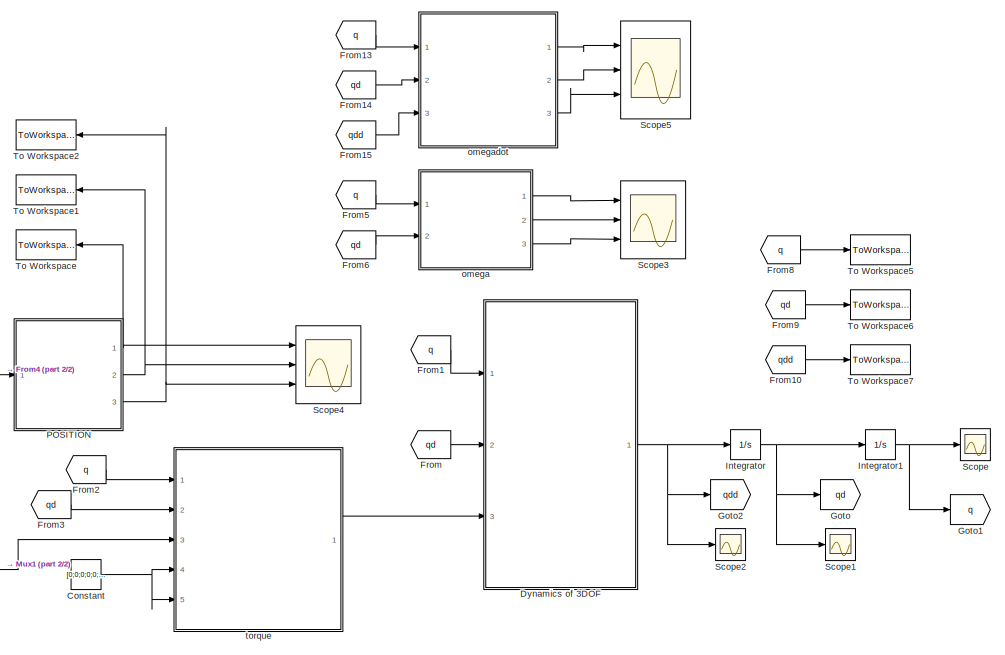
[diagram: root canvas - part 1/2, right side, full height]
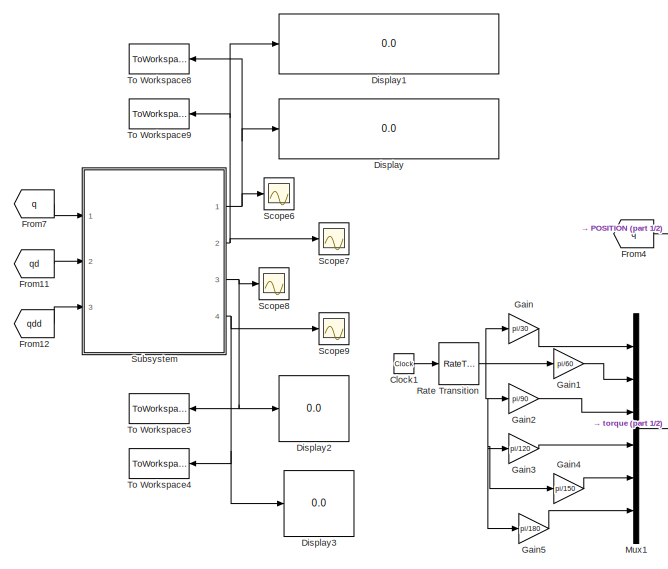
[diagram: root canvas - part 2/2, left side, full height]
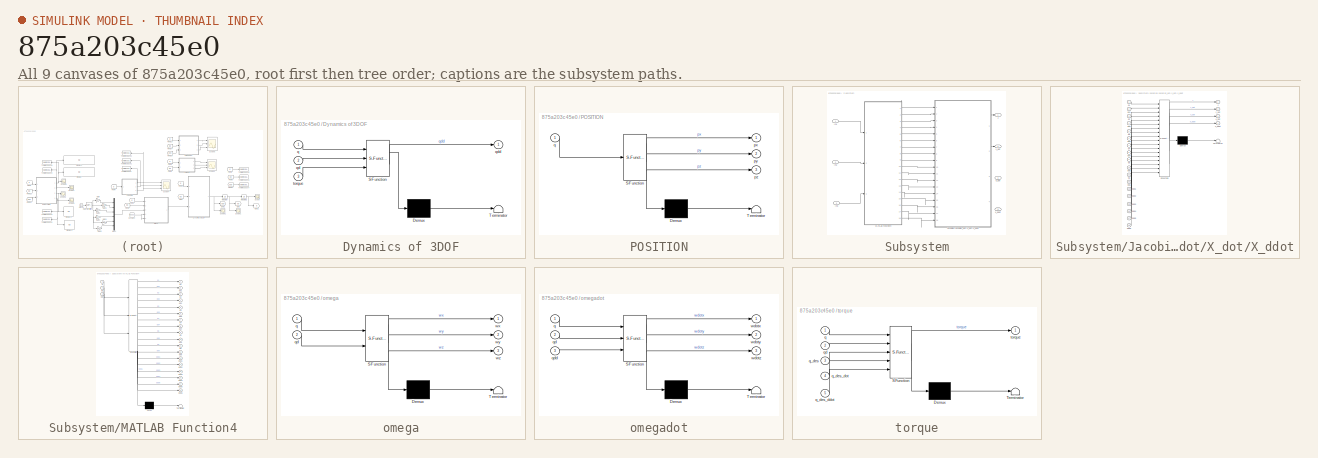
[diagram: thumbnail index - all 9 canvases of the model, root first then tree order]
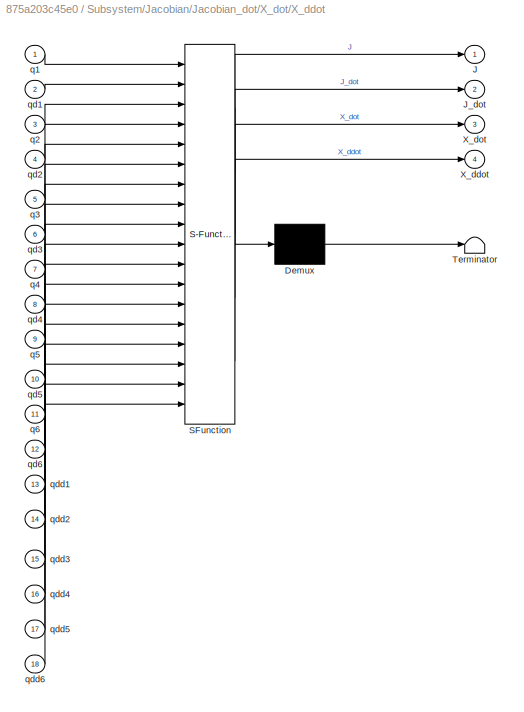
MODEL slx_875a203c45e0
KIND model
CONFIG AbsTol = auto
CONFIG EnableMultiTasking = off
CONFIG FixedStep = auto
CONFIG MaxStep = auto
CONFIG MinStep = auto
CONFIG RelTol = 1e-3
CONFIG SampleTimeConstraint = Unconstrained
CONFIG Solver = VariableStepAuto
CONFIG SolverName = VariableStepAuto
CONFIG StartTime = 0.0
CONFIG StopTime = 200
BLOCK [Clock] Clock1
BLOCK [Constant] Constant
  Value = [0;0;0;0;0;0]
BLOCK [Display] Display
  Decimation = 1
  Ports = [1]
BLOCK [Display] Display1
  Decimation = 1
  Ports = [1]
BLOCK [Display] Display2
  Decimation = 1
  Ports = [1]
BLOCK [Display] Display3
  Decimation = 1
  Ports = [1]
BLOCK [SubSystem] Dynamics of 3DOF
  ErrorFcn = Stateflow.Translate.translate
  PermitHierarchicalResolution = ExplicitOnly
  Ports = [3, 1]
  RequestExecContextInheritance = off
  SFBlockType = MATLAB Function
  TreatAsAtomicUnit = on
  Variant = off
BLOCK [Demux] Dynamics of 3DOF/ Demux 
  Outputs = 1
  Ports = [1, 1]
BLOCK [S-Function] Dynamics of 3DOF/ SFunction 
  EnableBusSupport = on
  FunctionName = sf_sfun
  PortCounts = [3 2]
  Ports = [3, 2]
  SFcnIsStateOwnerBlock = off
  SFunctionDeploymentMode = off
  Tag = Stateflow S-Function DynamicsAaa 2
BLOCK [Terminator] Dynamics of 3DOF/ Terminator 
BLOCK [Inport] Dynamics of 3DOF/q
  IconDisplay = Port number
BLOCK [Inport] Dynamics of 3DOF/qd
  IconDisplay = Port number
  Port = 2
BLOCK [Outport] Dynamics of 3DOF/qdd
  IconDisplay = Port number
BLOCK [Inport] Dynamics of 3DOF/torque
  IconDisplay = Port number
  Port = 3
BLOCK [From] From
  GotoTag = qd
BLOCK [From] From1
  GotoTag = q
BLOCK [From] From10
  GotoTag = qdd
BLOCK [From] From11
  GotoTag = qd
BLOCK [From] From12
  GotoTag = qdd
BLOCK [From] From13
  GotoTag = q
BLOCK [From] From14
  GotoTag = qd
BLOCK [From] From15
  GotoTag = qdd
BLOCK [From] From2
  GotoTag = q
BLOCK [From] From3
  GotoTag = qd
BLOCK [From] From4
  GotoTag = q
BLOCK [From] From5
  GotoTag = q
BLOCK [From] From6
  GotoTag = qd
BLOCK [From] From7
  GotoTag = q
BLOCK [From] From8
  GotoTag = q
BLOCK [From] From9
  GotoTag = qd
BLOCK [Gain] Gain
  Gain = pi/30
  OutDataTypeStr = Inherit: Inherit via internal rule
  ParamDataTypeStr = Inherit: Inherit via internal rule
  SaturateOnIntegerOverflow = off
BLOCK [Gain] Gain1
  Gain = pi/60
  OutDataTypeStr = Inherit: Inherit via internal rule
  ParamDataTypeStr = Inherit: Inherit via internal rule
  SaturateOnIntegerOverflow = off
BLOCK [Gain] Gain2
  Gain = pi/90
  OutDataTypeStr = Inherit: Inherit via internal rule
  ParamDataTypeStr = Inherit: Inherit via internal rule
  SaturateOnIntegerOverflow = off
BLOCK [Gain] Gain3
  Gain = pi/120
  OutDataTypeStr = Inherit: Inherit via internal rule
  ParamDataTypeStr = Inherit: Inherit via internal rule
  SaturateOnIntegerOverflow = off
BLOCK [Gain] Gain4
  Gain = pi/150
  OutDataTypeStr = Inherit: Inherit via internal rule
  ParamDataTypeStr = Inherit: Inherit via internal rule
  SaturateOnIntegerOverflow = off
BLOCK [Gain] Gain5
  Gain = pi/180
  OutDataTypeStr = Inherit: Inherit via internal rule
  ParamDataTypeStr = Inherit: Inherit via internal rule
  SaturateOnIntegerOverflow = off
BLOCK [Goto] Goto
  GotoTag = qd
BLOCK [Goto] Goto1
  GotoTag = q
BLOCK [Goto] Goto2
  GotoTag = qdd
BLOCK [Integrator] Integrator
  InitialCondition = [0;0;0;0;0;0]
  Ports = [1, 1]
BLOCK [Integrator] Integrator1
  InitialCondition = [1;1;1;1;1;1]
  Ports = [1, 1]
BLOCK [Mux] Mux1
  DisplayOption = bar
  Inputs = 6
  Ports = [6, 1]
BLOCK [SubSystem] POSITION
  ErrorFcn = Stateflow.Translate.translate
  PermitHierarchicalResolution = ExplicitOnly
  Ports = [1, 3]
  RequestExecContextInheritance = off
  SFBlockType = MATLAB Function
  TreatAsAtomicUnit = on
  Variant = off
BLOCK [Demux] POSITION/ Demux 
  Outputs = 1
  Ports = [1, 1]
BLOCK [S-Function] POSITION/ SFunction 
  EnableBusSupport = on
  FunctionName = sf_sfun
  PortCounts = [1 4]
  Ports = [1, 4]
  SFcnIsStateOwnerBlock = off
  SFunctionDeploymentMode = off
  Tag = Stateflow S-Function DynamicsAaa 4
BLOCK [Terminator] POSITION/ Terminator 
BLOCK [Outport] POSITION/px
  IconDisplay = Port number
BLOCK [Outport] POSITION/py
  IconDisplay = Port number
  Port = 2
BLOCK [Outport] POSITION/pz
  IconDisplay = Port number
  Port = 3
BLOCK [Inport] POSITION/q
  IconDisplay = Port number
BLOCK [RateTransition] Rate Transition
  OutPortSampleTime = 10
BLOCK [Scope] Scope
  NumInputPorts = 1
  Ports = [1]
  ScopeSpecificationString = Simulink.scopes.TimeScopeBlockCfg('CurrentConfiguration', extmgr.ConfigurationSet(extmgr.Configuration('Core','General UI',true,'FigureColor',[0.862745098039216 0.862745098039216 0.862745098039216]),extmgr.Configuration('Core','Source UI',true),extmgr.Configuration('Sources','WiredSimulink',true,'DataLoggingSaveFormat','Array','DataLoggingDecimation','1','DataLoggingDecimateData',true,'DataLogging...<+2173ch>
BLOCK [Scope] Scope1
  NumInputPorts = 1
  Ports = [1]
  ScopeSpecificationString = Simulink.scopes.TimeScopeBlockCfg('CurrentConfiguration', extmgr.ConfigurationSet(extmgr.Configuration('Core','General UI',true,'FigureColor',[0.862745098039216 0.862745098039216 0.862745098039216]),extmgr.Configuration('Core','Source UI',true),extmgr.Configuration('Sources','WiredSimulink',true,'DataLoggingVariableName','ScopeData2','DataLoggingSaveFormat','Array','DataLoggingDecimation','1','Dat...<+2142ch>
BLOCK [Scope] Scope2
  NumInputPorts = 1
  Ports = [1]
  ScopeSpecificationString = Simulink.scopes.TimeScopeBlockCfg('CurrentConfiguration', extmgr.ConfigurationSet(extmgr.Configuration('Core','General UI',true,'FigureColor',[0.862745098039216 0.862745098039216 0.862745098039216]),extmgr.Configuration('Core','Source UI',true),extmgr.Configuration('Sources','WiredSimulink',true,'DataLoggingSaveFormat','Array','DataLoggingDecimation','1','DataLoggingDecimateData',true),extmgr.Conf...<+2109ch>
BLOCK [Scope] Scope3
  NumInputPorts = 3
  Ports = [3]
  ScopeSpecificationString = Simulink.scopes.TimeScopeBlockCfg('CurrentConfiguration', extmgr.ConfigurationSet(extmgr.Configuration('Core','General UI',true,'FigureColor',[0.862745098039216 0.862745098039216 0.862745098039216]),extmgr.Configuration('Core','Source UI',true),extmgr.Configuration('Sources','WiredSimulink',true,'DataLoggingVariableName','ScopeData1'),extmgr.Configuration('Visuals','Time Domain',true,'SerializedDi...<+1907ch>
BLOCK [Scope] Scope4
  NumInputPorts = 3
  Ports = [3]
  ScopeSpecificationString = Simulink.scopes.TimeScopeBlockCfg('CurrentConfiguration', extmgr.ConfigurationSet(extmgr.Configuration('Core','General UI',true,'FigureColor',[0.862745098039216 0.862745098039216 0.862745098039216]),extmgr.Configuration('Core','Source UI',true),extmgr.Configuration('Sources','WiredSimulink',true,'DataLoggingVariableName','ScopeData2'),extmgr.Configuration('Visuals','Time Domain',true,'SerializedDi...<+1952ch>
BLOCK [Scope] Scope5
  NumInputPorts = 3
  Ports = [3]
  ScopeSpecificationString = Simulink.scopes.TimeScopeBlockCfg('CurrentConfiguration', extmgr.ConfigurationSet(extmgr.Configuration('Core','General UI',true,'FigureColor',[0.862745098039216 0.862745098039216 0.862745098039216]),extmgr.Configuration('Core','Source UI',true),extmgr.Configuration('Sources','WiredSimulink',true,'DataLoggingVariableName','ScopeData7'),extmgr.Configuration('Visuals','Time Domain',true,'SerializedDi...<+1931ch>
BLOCK [Scope] Scope6
  NumInputPorts = 1
  Ports = [1]
  ScopeSpecificationString = Simulink.scopes.TimeScopeBlockCfg('CurrentConfiguration', extmgr.ConfigurationSet(extmgr.Configuration('Core','General UI',true,'FigureColor',[0.862745098039216 0.862745098039216 0.862745098039216]),extmgr.Configuration('Core','Source UI',true),extmgr.Configuration('Sources','WiredSimulink',true,'DataLoggingVariableName','ScopeData3'),extmgr.Configuration('Visuals','Time Domain',true,'SerializedDi...<+2778ch>
BLOCK [Scope] Scope7
  NumInputPorts = 1
  Ports = [1]
  ScopeSpecificationString = Simulink.scopes.TimeScopeBlockCfg('CurrentConfiguration', extmgr.ConfigurationSet(extmgr.Configuration('Core','General UI',true,'FigureColor',[0.862745098039216 0.862745098039216 0.862745098039216]),extmgr.Configuration('Core','Source UI',true),extmgr.Configuration('Sources','WiredSimulink',true,'DataLoggingVariableName','ScopeData4'),extmgr.Configuration('Visuals','Time Domain',true,'SerializedDi...<+2812ch>
BLOCK [Scope] Scope8
  NumInputPorts = 1
  Ports = [1]
  ScopeSpecificationString = Simulink.scopes.TimeScopeBlockCfg('CurrentConfiguration', extmgr.ConfigurationSet(extmgr.Configuration('Core','General UI',true,'FigureColor',[0.862745098039216 0.862745098039216 0.862745098039216]),extmgr.Configuration('Core','Source UI',true),extmgr.Configuration('Sources','WiredSimulink',true,'DataLoggingVariableName','ScopeData5'),extmgr.Configuration('Visuals','Time Domain',true,'SerializedDi...<+1914ch>
BLOCK [Scope] Scope9
  NumInputPorts = 1
  Ports = [1]
  ScopeSpecificationString = Simulink.scopes.TimeScopeBlockCfg('CurrentConfiguration', extmgr.ConfigurationSet(extmgr.Configuration('Core','General UI',true,'FigureColor',[0.862745098039216 0.862745098039216 0.862745098039216]),extmgr.Configuration('Core','Source UI',true),extmgr.Configuration('Sources','WiredSimulink',true,'DataLoggingVariableName','ScopeData6'),extmgr.Configuration('Visuals','Time Domain',true,'SerializedDi...<+1916ch>
BLOCK [SubSystem] Subsystem
  Ports = [3, 4]
  RequestExecContextInheritance = off
  Variant = off
BLOCK [Inport] Subsystem/In1
  IconDisplay = Port number
BLOCK [Inport] Subsystem/In2
  IconDisplay = Port number
  Port = 2
BLOCK [Inport] Subsystem/In3
  IconDisplay = Port number
  Port = 3
BLOCK [Outport] Subsystem/J
  IconDisplay = Port number
BLOCK [Outport] Subsystem/J_dot
  IconDisplay = Port number
  Port = 2
BLOCK [SubSystem] Subsystem/Jacobian//Jacobian_dot//X_dot//X_ddot
  ErrorFcn = Stateflow.Translate.translate
  PermitHierarchicalResolution = ExplicitOnly
  Ports = [18, 4]
  RequestExecContextInheritance = off
  SFBlockType = MATLAB Function
  TreatAsAtomicUnit = on
  Variant = off
BLOCK [Demux] Subsystem/Jacobian//Jacobian_dot//X_dot//X_ddot/ Demux 
  Outputs = 1
  Ports = [1, 1]
BLOCK [S-Function] Subsystem/Jacobian//Jacobian_dot//X_dot//X_ddot/ SFunction 
  EnableBusSupport = on
  FunctionName = sf_sfun
  PortCounts = [18 5]
  Ports = [18, 5]
  SFcnIsStateOwnerBlock = off
  SFunctionDeploymentMode = off
  Tag = Stateflow S-Function DynamicsAaa 5
BLOCK [Terminator] Subsystem/Jacobian//Jacobian_dot//X_dot//X_ddot/ Terminator 
BLOCK [Outport] Subsystem/Jacobian//Jacobian_dot//X_dot//X_ddot/J
  IconDisplay = Port number
BLOCK [Outport] Subsystem/Jacobian//Jacobian_dot//X_dot//X_ddot/J_dot
  IconDisplay = Port number
  Port = 2
BLOCK [Outport] Subsystem/Jacobian//Jacobian_dot//X_dot//X_ddot/X_ddot
  IconDisplay = Port number
  Port = 4
BLOCK [Outport] Subsystem/Jacobian//Jacobian_dot//X_dot//X_ddot/X_dot
  IconDisplay = Port number
  Port = 3
BLOCK [Inport] Subsystem/Jacobian//Jacobian_dot//X_dot//X_ddot/q1
  IconDisplay = Port number
BLOCK [Inport] Subsystem/Jacobian//Jacobian_dot//X_dot//X_ddot/q2
  IconDisplay = Port number
  Port = 3
BLOCK [Inport] Subsystem/Jacobian//Jacobian_dot//X_dot//X_ddot/q3
  IconDisplay = Port number
  Port = 5
BLOCK [Inport] Subsystem/Jacobian//Jacobian_dot//X_dot//X_ddot/q4
  IconDisplay = Port number
  Port = 7
BLOCK [Inport] Subsystem/Jacobian//Jacobian_dot//X_dot//X_ddot/q5
  IconDisplay = Port number
  Port = 9
BLOCK [Inport] Subsystem/Jacobian//Jacobian_dot//X_dot//X_ddot/q6
  IconDisplay = Port number
  Port = 11
BLOCK [Inport] Subsystem/Jacobian//Jacobian_dot//X_dot//X_ddot/qd1
  IconDisplay = Port number
  Port = 2
BLOCK [Inport] Subsystem/Jacobian//Jacobian_dot//X_dot//X_ddot/qd2
  IconDisplay = Port number
  Port = 4
BLOCK [Inport] Subsystem/Jacobian//Jacobian_dot//X_dot//X_ddot/qd3
  IconDisplay = Port number
  Port = 6
BLOCK [Inport] Subsystem/Jacobian//Jacobian_dot//X_dot//X_ddot/qd4
  IconDisplay = Port number
  Port = 8
BLOCK [Inport] Subsystem/Jacobian//Jacobian_dot//X_dot//X_ddot/qd5
  IconDisplay = Port number
  Port = 10
BLOCK [Inport] Subsystem/Jacobian//Jacobian_dot//X_dot//X_ddot/qd6
  IconDisplay = Port number
  Port = 12
BLOCK [Inport] Subsystem/Jacobian//Jacobian_dot//X_dot//X_ddot/qdd1
  IconDisplay = Port number
  Port = 13
BLOCK [Inport] Subsystem/Jacobian//Jacobian_dot//X_dot//X_ddot/qdd2
  IconDisplay = Port number
  Port = 14
BLOCK [Inport] Subsystem/Jacobian//Jacobian_dot//X_dot//X_ddot/qdd3
  IconDisplay = Port number
  Port = 15
BLOCK [Inport] Subsystem/Jacobian//Jacobian_dot//X_dot//X_ddot/qdd4
  IconDisplay = Port number
  Port = 16
BLOCK [Inport] Subsystem/Jacobian//Jacobian_dot//X_dot//X_ddot/qdd5
  IconDisplay = Port number
  Port = 17
BLOCK [Inport] Subsystem/Jacobian//Jacobian_dot//X_dot//X_ddot/qdd6
  IconDisplay = Port number
  Port = 18
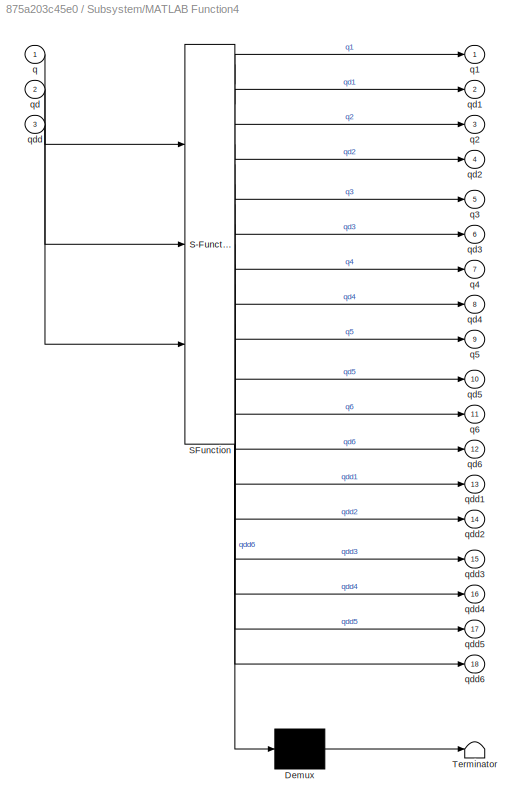
BLOCK [SubSystem] Subsystem/MATLAB Function4
  ErrorFcn = Stateflow.Translate.translate
  PermitHierarchicalResolution = ExplicitOnly
  Ports = [3, 18]
  RequestExecContextInheritance = off
  SFBlockType = MATLAB Function
  TreatAsAtomicUnit = on
  Variant = off
BLOCK [Demux] Subsystem/MATLAB Function4/ Demux 
  Outputs = 1
  Ports = [1, 1]
BLOCK [S-Function] Subsystem/MATLAB Function4/ SFunction 
  EnableBusSupport = on
  FunctionName = sf_sfun
  PortCounts = [3 19]
  Ports = [3, 19]
  SFcnIsStateOwnerBlock = off
  SFunctionDeploymentMode = off
  Tag = Stateflow S-Function DynamicsAaa 6
BLOCK [Terminator] Subsystem/MATLAB Function4/ Terminator 
BLOCK [Inport] Subsystem/MATLAB Function4/q
  IconDisplay = Port number
BLOCK [Outport] Subsystem/MATLAB Function4/q1
  IconDisplay = Port number
BLOCK [Outport] Subsystem/MATLAB Function4/q2
  IconDisplay = Port number
  Port = 3
BLOCK [Outport] Subsystem/MATLAB Function4/q3
  IconDisplay = Port number
  Port = 5
BLOCK [Outport] Subsystem/MATLAB Function4/q4
  IconDisplay = Port number
  Port = 7
BLOCK [Outport] Subsystem/MATLAB Function4/q5
  IconDisplay = Port number
  Port = 9
BLOCK [Outport] Subsystem/MATLAB Function4/q6
  IconDisplay = Port number
  Port = 11
BLOCK [Inport] Subsystem/MATLAB Function4/qd
  IconDisplay = Port number
  Port = 2
BLOCK [Outport] Subsystem/MATLAB Function4/qd1
  IconDisplay = Port number
  Port = 2
BLOCK [Outport] Subsystem/MATLAB Function4/qd2
  IconDisplay = Port number
  Port = 4
BLOCK [Outport] Subsystem/MATLAB Function4/qd3
  IconDisplay = Port number
  Port = 6
BLOCK [Outport] Subsystem/MATLAB Function4/qd4
  IconDisplay = Port number
  Port = 8
BLOCK [Outport] Subsystem/MATLAB Function4/qd5
  IconDisplay = Port number
  Port = 10
BLOCK [Outport] Subsystem/MATLAB Function4/qd6
  IconDisplay = Port number
  Port = 12
BLOCK [Inport] Subsystem/MATLAB Function4/qdd
  IconDisplay = Port number
  Port = 3
BLOCK [Outport] Subsystem/MATLAB Function4/qdd1
  IconDisplay = Port number
  Port = 13
BLOCK [Outport] Subsystem/MATLAB Function4/qdd2
  IconDisplay = Port number
  Port = 14
BLOCK [Outport] Subsystem/MATLAB Function4/qdd3
  IconDisplay = Port number
  Port = 15
BLOCK [Outport] Subsystem/MATLAB Function4/qdd4
  IconDisplay = Port number
  Port = 16
BLOCK [Outport] Subsystem/MATLAB Function4/qdd5
  IconDisplay = Port number
  Port = 17
BLOCK [Outport] Subsystem/MATLAB Function4/qdd6
  IconDisplay = Port number
  Port = 18
BLOCK [Outport] Subsystem/X_ddot
  IconDisplay = Port number
  Port = 4
BLOCK [Outport] Subsystem/X_dot
  IconDisplay = Port number
  Port = 3
BLOCK [ToWorkspace] To Workspace
  FixptAsFi = on
  MaxDataPoints = inf
  Ports = [1]
  SampleTime = -1
  Save2DSignal = 3-D array (concatenate along third dimension)
  VariableName = px
BLOCK [ToWorkspace] To Workspace1
  FixptAsFi = on
  MaxDataPoints = inf
  Ports = [1]
  SampleTime = -1
  Save2DSignal = 3-D array (concatenate along third dimension)
  VariableName = py
BLOCK [ToWorkspace] To Workspace2
  FixptAsFi = on
  MaxDataPoints = inf
  Ports = [1]
  SampleTime = -1
  Save2DSignal = 3-D array (concatenate along third dimension)
  VariableName = pz
BLOCK [ToWorkspace] To Workspace3
  FixptAsFi = on
  MaxDataPoints = inf
  Ports = [1]
  SampleTime = -1
  Save2DSignal = 3-D array (concatenate along third dimension)
  VariableName = X_dot
BLOCK [ToWorkspace] To Workspace4
  FixptAsFi = on
  MaxDataPoints = inf
  Ports = [1]
  SampleTime = -1
  Save2DSignal = 3-D array (concatenate along third dimension)
  VariableName = X_ddot
BLOCK [ToWorkspace] To Workspace5
  FixptAsFi = on
  MaxDataPoints = inf
  Ports = [1]
  SampleTime = -1
  VariableName = q
BLOCK [ToWorkspace] To Workspace6
  FixptAsFi = on
  MaxDataPoints = inf
  Ports = [1]
  SampleTime = -1
  VariableName = qd
BLOCK [ToWorkspace] To Workspace7
  FixptAsFi = on
  MaxDataPoints = inf
  Ports = [1]
  SampleTime = -1
  VariableName = qdd
BLOCK [ToWorkspace] To Workspace8
  FixptAsFi = on
  MaxDataPoints = inf
  Ports = [1]
  SampleTime = -1
  Save2DSignal = 3-D array (concatenate along third dimension)
  VariableName = J
BLOCK [ToWorkspace] To Workspace9
  FixptAsFi = on
  MaxDataPoints = inf
  Ports = [1]
  SampleTime = -1
  Save2DSignal = 3-D array (concatenate along third dimension)
  VariableName = J_dot
BLOCK [SubSystem] omega
  ErrorFcn = Stateflow.Translate.translate
  PermitHierarchicalResolution = ExplicitOnly
  Ports = [2, 3]
  RequestExecContextInheritance = off
  SFBlockType = MATLAB Function
  TreatAsAtomicUnit = on
  Variant = off
BLOCK [Demux] omega/ Demux 
  Outputs = 1
  Ports = [1, 1]
BLOCK [S-Function] omega/ SFunction 
  EnableBusSupport = on
  FunctionName = sf_sfun
  PortCounts = [2 4]
  Ports = [2, 4]
  SFcnIsStateOwnerBlock = off
  SFunctionDeploymentMode = off
  Tag = Stateflow S-Function DynamicsAaa 3
BLOCK [Terminator] omega/ Terminator 
BLOCK [Inport] omega/q
  IconDisplay = Port number
BLOCK [Inport] omega/qd
  IconDisplay = Port number
  Port = 2
BLOCK [Outport] omega/wx
  IconDisplay = Port number
BLOCK [Outport] omega/wy
  IconDisplay = Port number
  Port = 2
BLOCK [Outport] omega/wz
  IconDisplay = Port number
  Port = 3
BLOCK [SubSystem] omegadot
  ErrorFcn = Stateflow.Translate.translate
  PermitHierarchicalResolution = ExplicitOnly
  Ports = [3, 3]
  RequestExecContextInheritance = off
  SFBlockType = MATLAB Function
  TreatAsAtomicUnit = on
  Variant = off
BLOCK [Demux] omegadot/ Demux 
  Outputs = 1
  Ports = [1, 1]
BLOCK [S-Function] omegadot/ SFunction 
  EnableBusSupport = on
  FunctionName = sf_sfun
  PortCounts = [3 4]
  Ports = [3, 4]
  SFcnIsStateOwnerBlock = off
  SFunctionDeploymentMode = off
  Tag = Stateflow S-Function DynamicsAaa 7
BLOCK [Terminator] omegadot/ Terminator 
BLOCK [Inport] omegadot/q
  IconDisplay = Port number
BLOCK [Inport] omegadot/qd
  IconDisplay = Port number
  Port = 2
BLOCK [Inport] omegadot/qdd
  IconDisplay = Port number
  Port = 3
BLOCK [Outport] omegadot/wdotx
  IconDisplay = Port number
BLOCK [Outport] omegadot/wdoty
  IconDisplay = Port number
  Port = 2
BLOCK [Outport] omegadot/wdotz
  IconDisplay = Port number
  Port = 3
BLOCK [SubSystem] torque
  ErrorFcn = Stateflow.Translate.translate
  PermitHierarchicalResolution = ExplicitOnly
  Ports = [5, 1]
  RequestExecContextInheritance = off
  SFBlockType = MATLAB Function
  TreatAsAtomicUnit = on
  Variant = off
BLOCK [Demux] torque/ Demux 
  Outputs = 1
  Ports = [1, 1]
BLOCK [S-Function] torque/ SFunction 
  EnableBusSupport = on
  FunctionName = sf_sfun
  PortCounts = [5 2]
  Ports = [5, 2]
  SFcnIsStateOwnerBlock = off
  SFunctionDeploymentMode = off
  Tag = Stateflow S-Function DynamicsAaa 1
BLOCK [Terminator] torque/ Terminator 
BLOCK [Inport] torque/q
  IconDisplay = Port number
BLOCK [Inport] torque/q_des
  IconDisplay = Port number
  Port = 3
BLOCK [Inport] torque/q_des_ddot
  IconDisplay = Port number
  Port = 5
BLOCK [Inport] torque/q_des_dot
  IconDisplay = Port number
  Port = 4
BLOCK [Inport] torque/qd
  IconDisplay = Port number
  Port = 2
BLOCK [Outport] torque/torque
  IconDisplay = Port number
LINE Clock1:1 -> Rate Transition:1
NET Constant:1 -> torque:4, torque:5
NET Dynamics of 3DOF:1 -> Goto2:1, Integrator:1, Scope2:1
LINE From10:1 -> To Workspace7:1
LINE From11:1 -> Subsystem:2
LINE From12:1 -> Subsystem:3
LINE From13:1 -> omegadot:1
LINE From14:1 -> omegadot:2
LINE From15:1 -> omegadot:3
LINE From1:1 -> Dynamics of 3DOF:1
LINE From2:1 -> torque:1
LINE From3:1 -> torque:2
LINE From4:1 -> POSITION:1
LINE From5:1 -> omega:1
LINE From6:1 -> omega:2
LINE From7:1 -> Subsystem:1
LINE From8:1 -> To Workspace5:1
LINE From9:1 -> To Workspace6:1
LINE From:1 -> Dynamics of 3DOF:2
LINE Gain1:1 -> Mux1:2
LINE Gain2:1 -> Mux1:3
LINE Gain3:1 -> Mux1:4
LINE Gain4:1 -> Mux1:5
LINE Gain5:1 -> Mux1:6
LINE Gain:1 -> Mux1:1
NET Integrator1:1 -> Goto1:1, Scope:1
NET Integrator:1 -> Goto:1, Integrator1:1, Scope1:1
LINE Mux1:1 -> torque:3
NET POSITION:1 -> Scope4:1, To Workspace:1
NET POSITION:2 -> Scope4:2, To Workspace1:1
NET POSITION:3 -> Scope4:3, To Workspace2:1
NET Rate Transition:1 -> Gain1:1, Gain2:1, Gain3:1, Gain4:1, Gain5:1, Gain:1
LINE Subsystem/In1:1 -> Subsystem/MATLAB Function4:1
LINE Subsystem/In2:1 -> Subsystem/MATLAB Function4:2
LINE Subsystem/In3:1 -> Subsystem/MATLAB Function4:3
LINE Subsystem/Jacobian//Jacobian_dot//X_dot//X_ddot:1 -> Subsystem/J:1
LINE Subsystem/Jacobian//Jacobian_dot//X_dot//X_ddot:2 -> Subsystem/J_dot:1
LINE Subsystem/MATLAB Function4:1 -> Subsystem/Jacobian//Jacobian_dot//X_dot//X_ddot:1
LINE Subsystem/MATLAB Function4:10 -> Subsystem/Jacobian//Jacobian_dot//X_dot//X_ddot:10
LINE Subsystem/MATLAB Function4:11 -> Subsystem/Jacobian//Jacobian_dot//X_dot//X_ddot:11
LINE Subsystem/MATLAB Function4:12 -> Subsystem/Jacobian//Jacobian_dot//X_dot//X_ddot:12
LINE Subsystem/MATLAB Function4:13 -> Subsystem/Jacobian//Jacobian_dot//X_dot//X_ddot:13
LINE Subsystem/MATLAB Function4:14 -> Subsystem/Jacobian//Jacobian_dot//X_dot//X_ddot:14
LINE Subsystem/MATLAB Function4:15 -> Subsystem/Jacobian//Jacobian_dot//X_dot//X_ddot:15
LINE Subsystem/MATLAB Function4:16 -> Subsystem/Jacobian//Jacobian_dot//X_dot//X_ddot:16
LINE Subsystem/MATLAB Function4:17 -> Subsystem/Jacobian//Jacobian_dot//X_dot//X_ddot:17
LINE Subsystem/MATLAB Function4:18 -> Subsystem/Jacobian//Jacobian_dot//X_dot//X_ddot:18
LINE Subsystem/MATLAB Function4:2 -> Subsystem/Jacobian//Jacobian_dot//X_dot//X_ddot:2
LINE Subsystem/MATLAB Function4:3 -> Subsystem/Jacobian//Jacobian_dot//X_dot//X_ddot:3
LINE Subsystem/MATLAB Function4:4 -> Subsystem/Jacobian//Jacobian_dot//X_dot//X_ddot:4
LINE Subsystem/MATLAB Function4:5 -> Subsystem/Jacobian//Jacobian_dot//X_dot//X_ddot:5
LINE Subsystem/MATLAB Function4:6 -> Subsystem/Jacobian//Jacobian_dot//X_dot//X_ddot:6
LINE Subsystem/MATLAB Function4:7 -> Subsystem/Jacobian//Jacobian_dot//X_dot//X_ddot:7
LINE Subsystem/MATLAB Function4:8 -> Subsystem/Jacobian//Jacobian_dot//X_dot//X_ddot:8
LINE Subsystem/MATLAB Function4:9 -> Subsystem/Jacobian//Jacobian_dot//X_dot//X_ddot:9
NET Subsystem:1 -> Display:1, Scope6:1, To Workspace8:1
NET Subsystem:2 -> Display1:1, Scope7:1, To Workspace9:1
NET Subsystem:3 -> Display2:1, Scope8:1, To Workspace3:1
NET Subsystem:4 -> Display3:1, Scope9:1, To Workspace4:1
LINE omega:1 -> Scope3:1
LINE omega:2 -> Scope3:2
LINE omega:3 -> Scope3:3
LINE omegadot:1 -> Scope5:1
LINE omegadot:2 -> Scope5:2
LINE omegadot:3 -> Scope5:3
LINE torque:1 -> Dynamics of 3DOF:3
note: NET lines group one-source signal fan-out (src -> all destinations, sorted); 1:1 wires keep LINE
CHART torque states=1 transitions=1
  STATE_LABEL 'eML_blk_kernel()'
  STATE_LABEL 'SCRIPT:\nfunction torque = fcn(q,qd,q_des,q_des_dot,q_des_ddot)\n%#codegen\n\n%% Constant\n% syms qd(1) qd(2) qd(3) qd(4) qd(5) qd(6)\n% syms qdd(1) qdd(2) qdd(3) qdd(4) qdd(5) qdd(6)\n\ng = 9.8;\n\n\nm2=26.9797\nm3=15.9204\nm4=25.8524\nm5=4.08846\nm6=1.61544\nm7=0.0160103\n\nKp = 20;\nKd = 10;\n%% Triangle relative\n\nc1 = cos(q(1));\nc2 = cos(q(2));\nc3 = cos(q(3));\nc4 = cos(q(4));\nc5 = cos(q(5));\nc6 = cos(q(6));\ns1 = ...<+3608ch>'
CHART Dynamics of 3DOF states=1 transitions=1
  STATE_LABEL 'eML_blk_kernel()'
  STATE_LABEL 'SCRIPT:\nfunction qdd = fcn(q,qd,torque)\n%#codegen\n%% Constant\n\n% syms qd(1) qd(2) qd(3) qd(4) qd(5) qd(6)\n% syms qdd(1) qdd(2) qdd(3) qdd(4) qdd(5) qdd(6)\n\nm2=26.9797\nm3=15.9204\nm4=25.8524\nm5=4.08846\nm6=1.61544\nm7=0.0160103\n\ng = 9.8;\n\n%% Triangle relative\n\nc1 = cos(q(1));\nc2 = cos(q(2));\nc3 = cos(q(3));\nc4 = cos(q(4));\nc5 = cos(q(5));\nc6 = cos(q(6));\ns1 = sin(q(1));\ns2 = sin(q(2));\ns3 = sin(q(3));...<+3608ch>'
CHART omega states=1 transitions=1
  STATE_LABEL 'eML_blk_kernel()'
  STATE_LABEL 'SCRIPT:\nfunction [wx ,wy, wz] = fcn(q , qd)\n\nq1 = q(1);\nq2 = q(2);\nq3 = q(3);\nq4 = q(4);\nq5 = q(5);\nq6 = q(6);\n\nc1 = cos(q(1));\nc2 = cos(q(2));\nc3 = cos(q(3));\nc4 = cos(q(4));\nc5 = cos(q(5));\nc6 = cos(q(6));\ns1 = sin(q(1));\ns2 = sin(q(2));\ns3 = sin(q(3));\ns4 = sin(q(4));\ns5 = sin(q(5));\ns6 = sin(q(6));\n\nwx = c6*(c5*(-c3*s4*(q(1) + q(2)) + c4*s3*(q(1) + q(2))) - s5*(-q(3) + q(4))) - s6*(-c5*(-q(3) ...<+284ch>'
CHART POSITION states=1 transitions=1
  STATE_LABEL 'eML_blk_kernel()'
  STATE_LABEL 'SCRIPT:\nfunction [px,py,pz] = fcn(q)\n%#codegen\n\nq1 = q(1);\nq2 = q(2);\nq3 = q(3);\nq4 = q(4);\nq5 = q(5);\nq6 = q(6);\n\n\npx = 270*cos(q(1)) + 90*cos(q(1))*cos(q(2)) - 295*cos(q(1))*sin(q(2)) - 295*cos(q(2))*sin(q(1)) - 90*sin(q(1))*sin(q(2)) + 80*cos(q(3))*sin(q(4))*(cos(q(1))*cos(q(2)) - sin(q(1))*sin(q(2))) - 80*cos(q(4))*sin(q(3))*(cos(q(1))*cos(q(2)) - sin(q(1))*sin(q(2))) + 75;\npy = 80*cos(q(3))*c...<+317ch>'
CHART Subsystem/Jacobian//Jacobian_dot//X_dot//X_ddot states=1 transitions=1
  STATE_LABEL 'eML_blk_kernel()'
  STATE_LABEL 'SCRIPT:\nfunction [J,J_dot,X_dot,X_ddot] = fcn(q1,qd1,q2,qd2,q3,qd3,q4,qd4,q5,qd5,q6,qd6,qdd1,qdd2,qdd3,qdd4,qdd5,qdd6)\n%#codegen\n\nj1 = [ 295*sin(q1)*sin(q2) - 295*cos(q1)*cos(q2) - 90*cos(q1)*sin(q2) - 90*cos(q2)*sin(q1) - 270*sin(q1) - 80*cos(q3)*sin(q4)*(cos(q1)*sin(q2) + cos(q2)*sin(q1)) + 80*cos(q4)*sin(q3)*(cos(q1)*sin(q2) + cos(q2)*sin(q1)), 295*sin(q1)*sin(q2) - 90*cos(q1)*sin(q2) - 90*cos(...<+3608ch>'
CHART Subsystem/MATLAB Function4 states=1 transitions=1
  STATE_LABEL 'eML_blk_kernel()'
  STATE_LABEL 'SCRIPT:\nfunction [q1,qd1,q2,qd2,q3,qd3,q4,qd4,q5,qd5,q6,qd6,qdd1,qdd2,qdd3,qdd4,qdd5,qdd6] = fcn(q,qd,qdd)\n%#codegen\n\nq1 = q(1);\nq2 = q(2);\nq3 = q(3);\nq4 = q(4);\nq5 = q(5);\nq6 = q(6);\n\nqd1 = qd(1);\nqd2 = qd(2);\nqd3 = qd(3);\nqd4 = qd(4);\nqd5 = qd(5);\nqd6 = qd(6);\n\nqdd1 = qdd(1);\nqdd2 = qdd(2);\nqdd3 = qdd(3);\nqdd4 = qdd(4);\nqdd5 = qdd(5);\nqdd6 = qdd(6);'
CHART omegadot states=1 transitions=1
  STATE_LABEL 'eML_blk_kernel()'
  STATE_LABEL 'SCRIPT:\nfunction [wdotx ,wdoty, wdotz] = fcn(q , qd, qdd)\n\nq1 = q(1);\nq2 = q(2);\nq3 = q(3);\nq4 = q(4);\nq5 = q(5);\nq6 = q(6);\n\nc1 = cos(q(1));\nc2 = cos(q(2));\nc3 = cos(q(3));\nc4 = cos(q(4));\nc5 = cos(q(5));\nc6 = cos(q(6));\ns1 = sin(q(1));\ns2 = sin(q(2));\ns3 = sin(q(3));\ns4 = sin(q(4));\ns5 = sin(q(5));\ns6 = sin(q(6));\n\nwdotx = c6*(c5*(c4*(c3*qd(3)*(qd(1) + qd(2)) + s3*(qdd(1) + qdd(2))) + qd(4)*(-c3...<+1616ch>'
